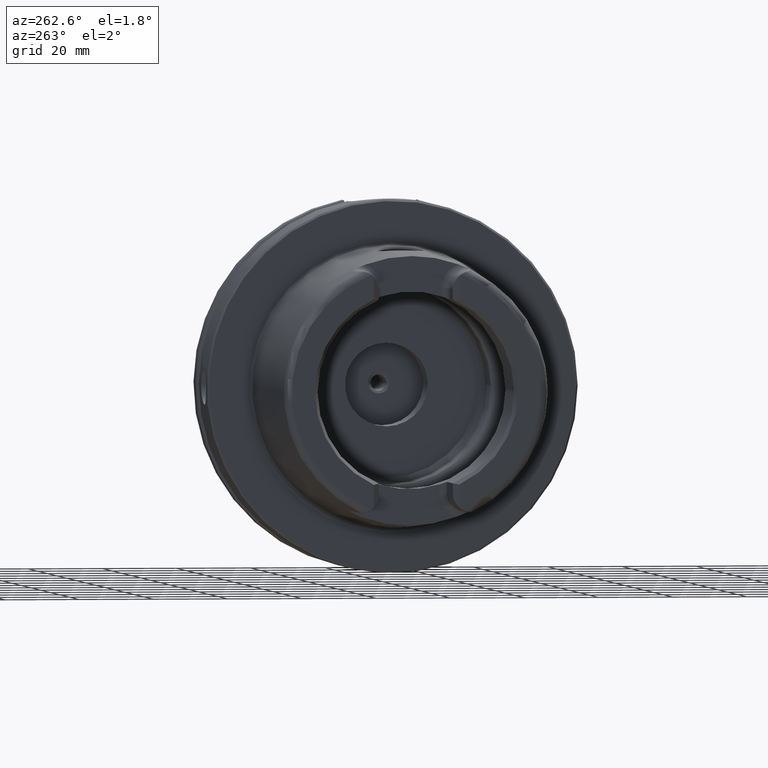
[diagram: clean part render]
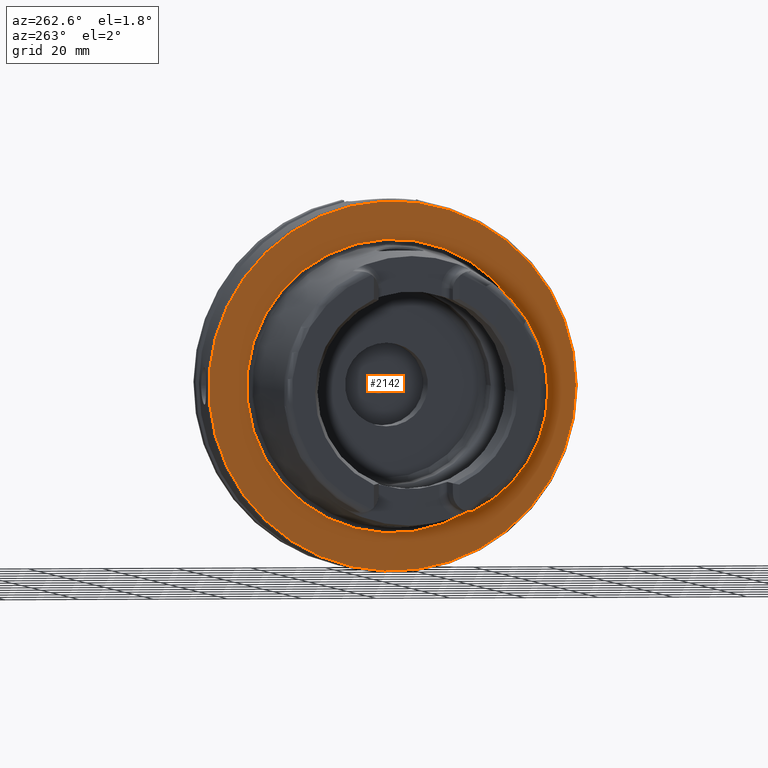
[diagram: same view with one face highlighted and labeled with its STEP entity id]
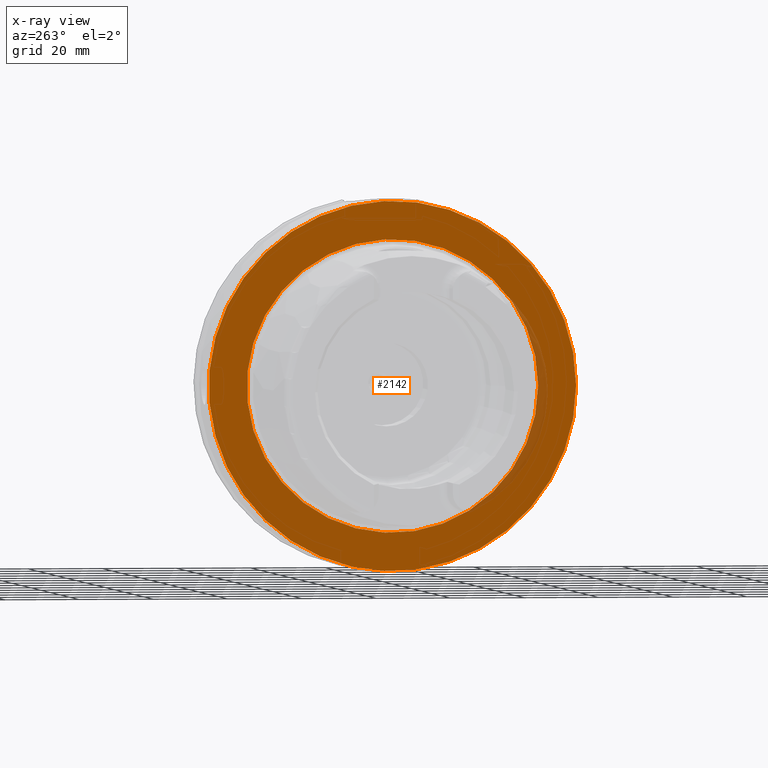
[diagram: x-ray of the same camera — body ghosted, the highlighted face saturated]
A machine part, auxiliary view. The second image highlights one B-rep face of the part: STEP entity #2142.
The next image is the same camera in x-ray: the body ghosted, the highlighted face saturated — about 5% of this face is hidden behind the body in this view.
In plain terms, the highlighted planar face has unit normal (-1, 0, 0).
Its self-contained STEP definition (entity closure, byte-faithful):
#98=FACE_BOUND('',#461,.T.);
#135=PLANE('',#2425);
#324=FACE_OUTER_BOUND('',#460,.T.);
#460=EDGE_LOOP('',(#1964));
#461=EDGE_LOOP('',(#1965));
#815=CIRCLE('',#2424,39.2747800249997);
#816=CIRCLE('',#2426,49.5);
#1034=VERTEX_POINT('',#4605);
#1035=VERTEX_POINT('',#4609);
#1349=EDGE_CURVE('',#1034,#1034,#815,.T.);
#1350=EDGE_CURVE('',#1035,#1035,#816,.T.);
#1964=ORIENTED_EDGE('',*,*,#1350,.F.);
#1965=ORIENTED_EDGE('',*,*,#1349,.T.);
#2142=ADVANCED_FACE('',(#324,#98),#135,.T.);
#2424=AXIS2_PLACEMENT_3D('',#4607,#3048,#3049);
#2425=AXIS2_PLACEMENT_3D('',#4608,#3050,#3051);
#2426=AXIS2_PLACEMENT_3D('',#4610,#3052,#3053);
#3048=DIRECTION('center_axis',(1.,0.,0.));
#3049=DIRECTION('ref_axis',(0.,0.,-1.));
#3050=DIRECTION('center_axis',(-1.,0.,0.));
#3051=DIRECTION('ref_axis',(0.,0.,1.));
#3052=DIRECTION('center_axis',(1.,0.,0.));
#3053=DIRECTION('ref_axis',(0.,0.,-1.));
#4605=CARTESIAN_POINT('',(-1.04950770296597E-15,-39.2747800249997,-4.80977336448322E-15));
#4607=CARTESIAN_POINT('Origin',(0.,0.,0.));
#4608=CARTESIAN_POINT('Origin',(0.,49.5,0.));
#4609=CARTESIAN_POINT('',(1.28369537222284E-15,-49.5,-6.0620016557794E-15));
#4610=CARTESIAN_POINT('Origin',(0.,0.,0.));